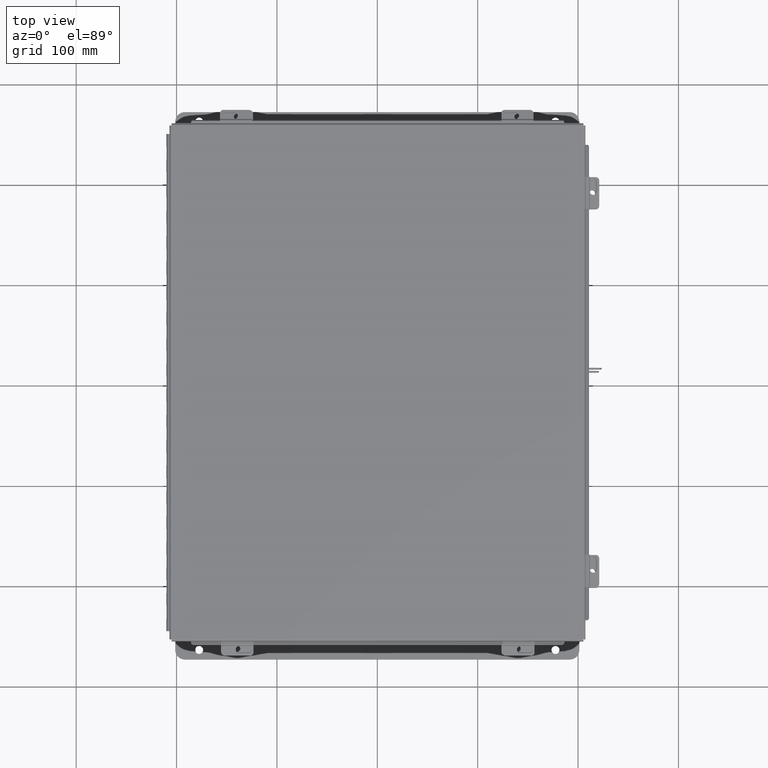
[diagram: clean part render]
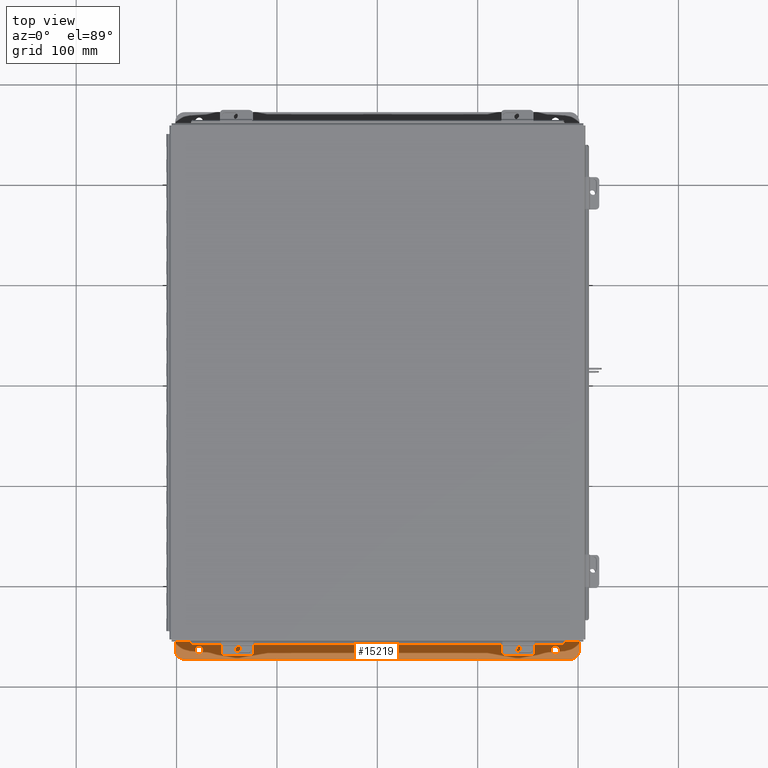
[diagram: same view with one face highlighted and labeled with its STEP entity id]
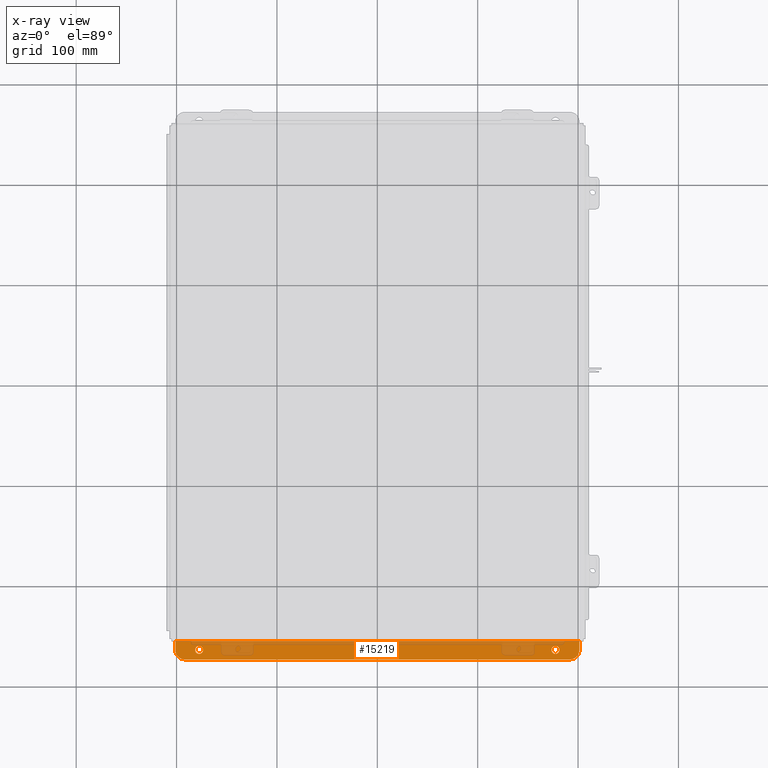
[diagram: x-ray of the same camera — body ghosted, the highlighted face saturated]
A machine part, top view. The second image highlights one B-rep face of the part: STEP entity #15219.
The next image is the same camera in x-ray: the body ghosted, the highlighted face saturated — about 29% of this face is hidden behind the body in this view.
In plain terms, the highlighted planar face has unit normal (0, -0, 1).
Its self-contained STEP definition (entity closure, byte-faithful):
#135 = LINE ( 'NONE', #10830, #9338 ) ;
#688 = ORIENTED_EDGE ( 'NONE', *, *, #12871, .F. ) ;
#749 = DIRECTION ( 'NONE',  ( 0.0000000000000000000, -1.000000000000000000, 3.502369222646487400E-015 ) ) ;
#1540 = CARTESIAN_POINT ( 'NONE',  ( -7.550299999999991100, 0.3628000000000008400, -4.112300000000001200 ) ) ;
#1597 = EDGE_CURVE ( 'NONE', #10324, #17628, #12163, .T. ) ;
#1735 = DIRECTION ( 'NONE',  ( -4.919856193148104900E-031, -1.000000000000000000, 3.702694488566362300E-015 ) ) ;
#2773 = AXIS2_PLACEMENT_3D ( 'NONE', #8359, #12830, #13677 ) ;
#3068 = CARTESIAN_POINT ( 'NONE',  ( -6.987799999999992900, 0.3628000000000008400, -4.112300000000001200 ) ) ;
#3264 = DIRECTION ( 'NONE',  ( 0.0000000000000000000, -1.000000000000000000, 4.370956789862820400E-015 ) ) ;
#3467 = ORIENTED_EDGE ( 'NONE', *, *, #6306, .T. ) ;
#3843 = VERTEX_POINT ( 'NONE', #18049 ) ;
#4038 = CARTESIAN_POINT ( 'NONE',  ( 7.550300000000008000, 0.7378000000000163300, -4.112300000000002100 ) ) ;
#4305 = VERTEX_POINT ( 'NONE', #11807 ) ;
#5132 = CIRCLE ( 'NONE', #14841, 0.1560000000000001700 ) ;
#5144 = VERTEX_POINT ( 'NONE', #19817 ) ;
#5455 = AXIS2_PLACEMENT_3D ( 'NONE', #6221, #18327, #7960 ) ;
#5462 = VERTEX_POINT ( 'NONE', #18074 ) ;
#5613 = DIRECTION ( 'NONE',  ( -1.000000000000000000, -3.446996320220427900E-017, 0.0000000000000000000 ) ) ;
#5657 = EDGE_CURVE ( 'NONE', #4305, #22365, #10080, .T. ) ;
#6221 = CARTESIAN_POINT ( 'NONE',  ( 6.987800000000008000, 0.3628000000000161700, -4.112300000000001200 ) ) ;
#6306 = EDGE_CURVE ( 'NONE', #5462, #22079, #12280, .T. ) ;
#6566 = AXIS2_PLACEMENT_3D ( 'NONE', #3068, #16456, #13441 ) ;
#7142 = CIRCLE ( 'NONE', #22061, 0.3750000000000000600 ) ;
#7681 = CARTESIAN_POINT ( 'NONE',  ( -7.925299999999990200, 0.3628000000000008400, -4.112300000000005600 ) ) ;
#7960 = DIRECTION ( 'NONE',  ( 0.0000000000000000000, -1.000000000000000000, 3.502369222646487400E-015 ) ) ;
#8359 = CARTESIAN_POINT ( 'NONE',  ( 7.550300000000008000, 0.3628000000000161700, -4.112300000000001200 ) ) ;
#9338 = VECTOR ( 'NONE', #5613, 39.37007874015748100 ) ;
#9359 = LINE ( 'NONE', #10348, #17471 ) ;
#9539 = ORIENTED_EDGE ( 'NONE', *, *, #21958, .F. ) ;
#9581 = CARTESIAN_POINT ( 'NONE',  ( -6.987799999999992900, 0.3628000000000008400, -4.112300000000001200 ) ) ;
#10042 = DIRECTION ( 'NONE',  ( 4.919856193148104900E-031, 1.000000000000000000, -3.702694488566362300E-015 ) ) ;
#10080 = CIRCLE ( 'NONE', #2773, 0.3750000000000000600 ) ;
#10226 = EDGE_CURVE ( 'NONE', #17628, #10324, #11613, .T. ) ;
#10324 = VERTEX_POINT ( 'NONE', #18544 ) ;
#10348 = CARTESIAN_POINT ( 'NONE',  ( 7.925300000000008900, 1.748382715945128500E-014, -4.112299999999999400 ) ) ;
#10575 = VERTEX_POINT ( 'NONE', #20852 ) ;
#10830 = CARTESIAN_POINT ( 'NONE',  ( 7.925300000000008900, 0.01300000000001759100, -4.112299999999999400 ) ) ;
#11326 = DIRECTION ( 'NONE',  ( 0.0000000000000000000, -1.000000000000000000, 3.502369222646487400E-015 ) ) ;
#11372 = DIRECTION ( 'NONE',  ( -4.919856193148104900E-031, -1.000000000000000000, 3.702694488566362300E-015 ) ) ;
#11613 = CIRCLE ( 'NONE', #5455, 0.1560000000000001700 ) ;
#11807 = CARTESIAN_POINT ( 'NONE',  ( 7.925300000000008900, 0.3628000000000161700, -4.112300000000005600 ) ) ;
#12079 = FACE_BOUND ( 'NONE', #20295, .T. ) ;
#12163 = CIRCLE ( 'NONE', #12378, 0.1560000000000001700 ) ;
#12280 = CIRCLE ( 'NONE', #6566, 0.1560000000000001700 ) ;
#12378 = AXIS2_PLACEMENT_3D ( 'NONE', #19405, #19140, #749 ) ;
#12830 = DIRECTION ( 'NONE',  ( 0.0000000000000000000, 3.702694488566362300E-015, 1.000000000000000000 ) ) ;
#12871 = EDGE_CURVE ( 'NONE', #5144, #10575, #135, .T. ) ;
#13067 = LINE ( 'NONE', #13354, #21744 ) ;
#13274 = DIRECTION ( 'NONE',  ( 1.000000000000000000, 4.910036603141682400E-031, -0.0000000000000000000 ) ) ;
#13354 = CARTESIAN_POINT ( 'NONE',  ( 7.925300000000008900, 0.7378000000000163300, -4.112300000000002100 ) ) ;
#13441 = DIRECTION ( 'NONE',  ( 0.0000000000000000000, -1.000000000000000000, 3.502369222646487400E-015 ) ) ;
#13626 = DIRECTION ( 'NONE',  ( 0.0000000000000000000, 3.702694488566362300E-015, 1.000000000000000000 ) ) ;
#13677 = DIRECTION ( 'NONE',  ( 0.0000000000000000000, -1.000000000000000000, 4.370956789862820400E-015 ) ) ;
#13993 = EDGE_LOOP ( 'NONE', ( #15228, #18186 ) ) ;
#14022 = ORIENTED_EDGE ( 'NONE', *, *, #5657, .T. ) ;
#14841 = AXIS2_PLACEMENT_3D ( 'NONE', #9581, #21672, #11326 ) ;
#15219 = ADVANCED_FACE ( 'NONE', ( #12079, #20745, #16121 ), #20000, .T. ) ;
#15228 = ORIENTED_EDGE ( 'NONE', *, *, #1597, .T. ) ;
#15879 = ORIENTED_EDGE ( 'NONE', *, *, #16965, .T. ) ;
#16121 = FACE_OUTER_BOUND ( 'NONE', #16553, .T. ) ;
#16142 = CARTESIAN_POINT ( 'NONE',  ( 6.987799999999999100, 0.2068000000000159700, -4.112300000000000300 ) ) ;
#16456 = DIRECTION ( 'NONE',  ( -0.0000000000000000000, -3.702694488566362300E-015, -1.000000000000000000 ) ) ;
#16553 = EDGE_LOOP ( 'NONE', ( #9539, #15879, #17199, #688, #18163, #14022 ) ) ;
#16599 = LINE ( 'NONE', #18734, #20670 ) ;
#16965 = EDGE_CURVE ( 'NONE', #3843, #22436, #7142, .T. ) ;
#17142 = CARTESIAN_POINT ( 'NONE',  ( -6.987800000000000900, 0.5188000000000010400, -4.112300000000001200 ) ) ;
#17199 = ORIENTED_EDGE ( 'NONE', *, *, #22029, .F. ) ;
#17471 = VECTOR ( 'NONE', #1735, 39.37007874015748100 ) ;
#17628 = VERTEX_POINT ( 'NONE', #16142 ) ;
#18049 = CARTESIAN_POINT ( 'NONE',  ( -7.550299999999991100, 0.7378000000000011200, -4.112300000000002100 ) ) ;
#18074 = CARTESIAN_POINT ( 'NONE',  ( -6.987800000000000900, 0.2068000000000006800, -4.112300000000000300 ) ) ;
#18163 = ORIENTED_EDGE ( 'NONE', *, *, #20810, .F. ) ;
#18186 = ORIENTED_EDGE ( 'NONE', *, *, #10226, .T. ) ;
#18327 = DIRECTION ( 'NONE',  ( -0.0000000000000000000, -3.702694488566362300E-015, -1.000000000000000000 ) ) ;
#18544 = CARTESIAN_POINT ( 'NONE',  ( 6.987799999999999100, 0.5188000000000163600, -4.112300000000001200 ) ) ;
#18734 = CARTESIAN_POINT ( 'NONE',  ( -7.925299999999990200, 0.7378000000000011200, -4.112300000000002100 ) ) ;
#18846 = AXIS2_PLACEMENT_3D ( 'NONE', #21646, #21719, #11372 ) ;
#19140 = DIRECTION ( 'NONE',  ( -0.0000000000000000000, -3.702694488566362300E-015, -1.000000000000000000 ) ) ;
#19268 = EDGE_CURVE ( 'NONE', #22079, #5462, #5132, .T. ) ;
#19324 = ORIENTED_EDGE ( 'NONE', *, *, #19268, .T. ) ;
#19405 = CARTESIAN_POINT ( 'NONE',  ( 6.987800000000008000, 0.3628000000000161700, -4.112300000000001200 ) ) ;
#19817 = CARTESIAN_POINT ( 'NONE',  ( 7.925300000000008900, 0.01300000000001759100, -4.112299999999999400 ) ) ;
#20000 = PLANE ( 'NONE',  #18846 ) ;
#20295 = EDGE_LOOP ( 'NONE', ( #19324, #3467 ) ) ;
#20670 = VECTOR ( 'NONE', #10042, 39.37007874015748100 ) ;
#20745 = FACE_BOUND ( 'NONE', #13993, .T. ) ;
#20810 = EDGE_CURVE ( 'NONE', #4305, #5144, #9359, .T. ) ;
#20852 = CARTESIAN_POINT ( 'NONE',  ( -7.925299999999991100, 0.01299999999999792100, -4.112299999999999400 ) ) ;
#21646 = CARTESIAN_POINT ( 'NONE',  ( -2.035385365534024800E-024, -1.311287036958846300E-014, -4.112299999999999400 ) ) ;
#21672 = DIRECTION ( 'NONE',  ( -0.0000000000000000000, -3.702694488566362300E-015, -1.000000000000000000 ) ) ;
#21719 = DIRECTION ( 'NONE',  ( 0.0000000000000000000, 3.702694488566362300E-015, 1.000000000000000000 ) ) ;
#21744 = VECTOR ( 'NONE', #13274, 39.37007874015748100 ) ;
#21958 = EDGE_CURVE ( 'NONE', #3843, #22365, #13067, .T. ) ;
#22029 = EDGE_CURVE ( 'NONE', #10575, #22436, #16599, .T. ) ;
#22061 = AXIS2_PLACEMENT_3D ( 'NONE', #1540, #13626, #3264 ) ;
#22079 = VERTEX_POINT ( 'NONE', #17142 ) ;
#22365 = VERTEX_POINT ( 'NONE', #4038 ) ;
#22436 = VERTEX_POINT ( 'NONE', #7681 ) ;